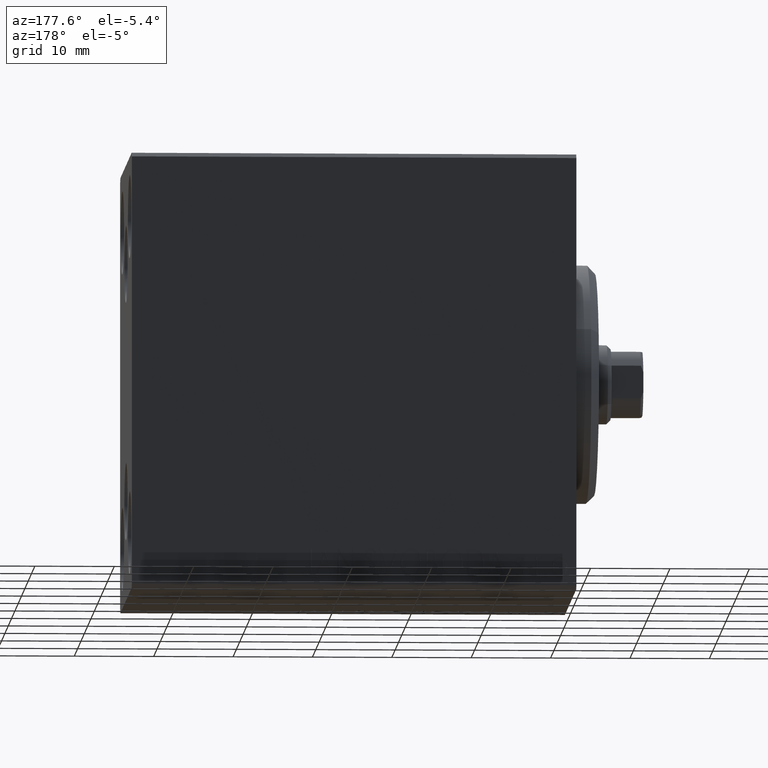
[diagram: clean part render]
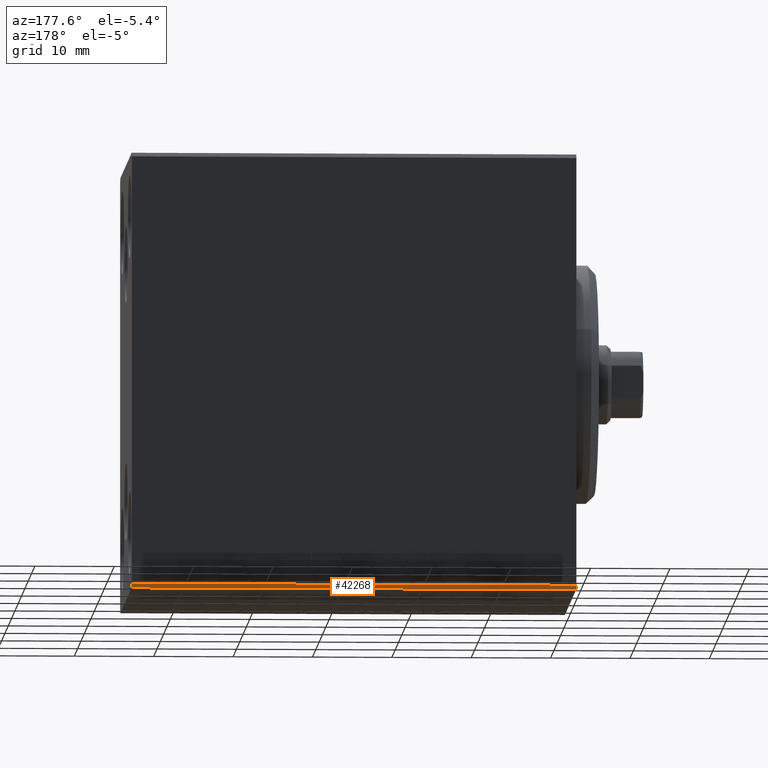
[diagram: same view with one face highlighted and labeled with its STEP entity id]
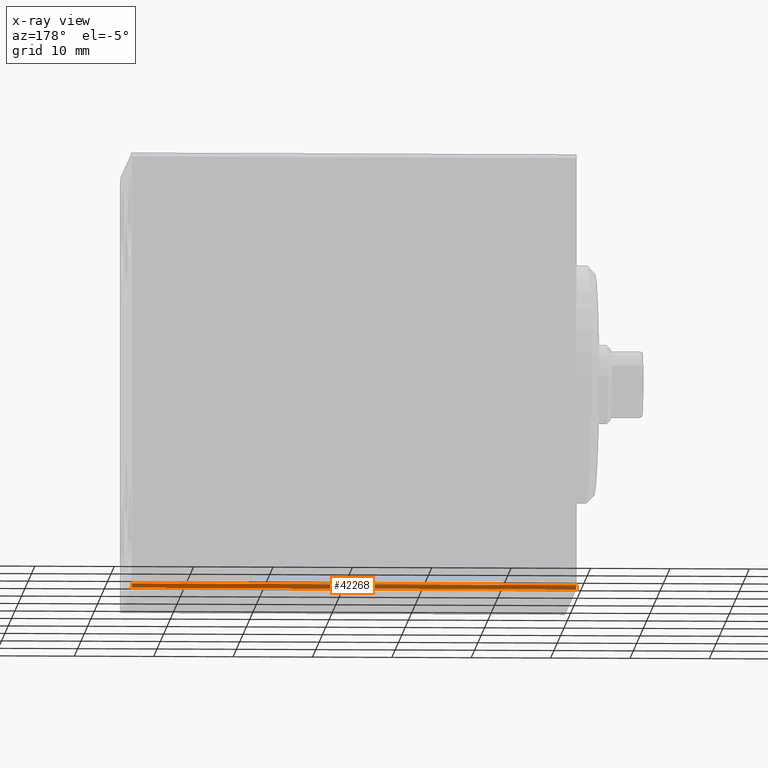
[diagram: x-ray of the same camera — body ghosted, the highlighted face saturated]
A machine part, auxiliary view. The second image highlights one B-rep face of the part: STEP entity #42268.
The next image is the same camera in x-ray: the body ghosted, the highlighted face saturated — about 0% of this face is hidden behind the body in this view.
In plain terms, the highlighted planar face has unit normal (0, -0.7071, 0.7071).
Its self-contained STEP definition (entity closure, byte-faithful):
#1095 = LINE ( 'NONE', #31043, #28562 ) ;
#2632 = EDGE_CURVE ( 'NONE', #6787, #36445, #24089, .T. ) ;
#3332 = LINE ( 'NONE', #16870, #29470 ) ;
#5492 = DIRECTION ( 'NONE',  ( -1.000000000000000000, 0.000000000000000000, 0.000000000000000000 ) ) ;
#6787 = VERTEX_POINT ( 'NONE', #28978 ) ;
#7032 = CARTESIAN_POINT ( 'NONE',  ( 56.00000000000000000, 22.25000000000000711, -22.25000000000000711 ) ) ;
#7332 = EDGE_CURVE ( 'NONE', #43708, #6787, #3332, .T. ) ;
#8393 = LINE ( 'NONE', #32776, #10640 ) ;
#8606 = ORIENTED_EDGE ( 'NONE', *, *, #7332, .F. ) ;
#10586 = EDGE_CURVE ( 'NONE', #13802, #43708, #8393, .T. ) ;
#10640 = VECTOR ( 'NONE', #35679, 1000.000000000000114 ) ;
#12621 = AXIS2_PLACEMENT_3D ( 'NONE', #42987, #43421, #5492 ) ;
#13802 = VERTEX_POINT ( 'NONE', #22546 ) ;
#16870 = CARTESIAN_POINT ( 'NONE',  ( 56.00000000000000000, 17.00000000000000711, -27.50000000000000355 ) ) ;
#20539 = DIRECTION ( 'NONE',  ( -0.000000000000000000, 0.7071067811865474617, 0.7071067811865474617 ) ) ;
#22546 = CARTESIAN_POINT ( 'NONE',  ( 0.000000000000000000, 17.50000000000000711, -27.00000000000000355 ) ) ;
#23892 = EDGE_CURVE ( 'NONE', #36445, #13802, #1095, .T. ) ;
#24089 = LINE ( 'NONE', #7032, #31601 ) ;
#26305 = ORIENTED_EDGE ( 'NONE', *, *, #2632, .F. ) ;
#26535 = PLANE ( 'NONE',  #12621 ) ;
#28562 = VECTOR ( 'NONE', #41724, 1000.000000000000000 ) ;
#28978 = CARTESIAN_POINT ( 'NONE',  ( 56.00000000000000000, 17.00000000000000711, -27.50000000000000355 ) ) ;
#29047 = ORIENTED_EDGE ( 'NONE', *, *, #23892, .F. ) ;
#29470 = VECTOR ( 'NONE', #41280, 1000.000000000000000 ) ;
#29858 = CARTESIAN_POINT ( 'NONE',  ( 56.00000000000000000, 17.50000000000000711, -27.00000000000000355 ) ) ;
#31043 = CARTESIAN_POINT ( 'NONE',  ( 56.00000000000000000, 17.50000000000000711, -27.00000000000000355 ) ) ;
#31601 = VECTOR ( 'NONE', #20539, 1000.000000000000114 ) ;
#32776 = CARTESIAN_POINT ( 'NONE',  ( 0.000000000000000000, 17.50000000000000711, -27.00000000000000355 ) ) ;
#34229 = EDGE_LOOP ( 'NONE', ( #26305, #8606, #38200, #29047 ) ) ;
#35679 = DIRECTION ( 'NONE',  ( 0.000000000000000000, -0.7071067811865474617, -0.7071067811865474617 ) ) ;
#35891 = FACE_OUTER_BOUND ( 'NONE', #34229, .T. ) ;
#36445 = VERTEX_POINT ( 'NONE', #29858 ) ;
#38200 = ORIENTED_EDGE ( 'NONE', *, *, #10586, .F. ) ;
#41280 = DIRECTION ( 'NONE',  ( 1.000000000000000000, 0.000000000000000000, 0.000000000000000000 ) ) ;
#41594 = CARTESIAN_POINT ( 'NONE',  ( 0.000000000000000000, 17.00000000000000711, -27.50000000000000355 ) ) ;
#41724 = DIRECTION ( 'NONE',  ( -1.000000000000000000, 0.000000000000000000, 0.000000000000000000 ) ) ;
#42268 = ADVANCED_FACE ( 'NONE', ( #35891 ), #26535, .F. ) ;
#42987 = CARTESIAN_POINT ( 'NONE',  ( 56.00000000000000000, 17.50000000000000711, -27.00000000000000355 ) ) ;
#43421 = DIRECTION ( 'NONE',  ( 0.000000000000000000, -0.7071067811865475727, 0.7071067811865475727 ) ) ;
#43708 = VERTEX_POINT ( 'NONE', #41594 ) ;